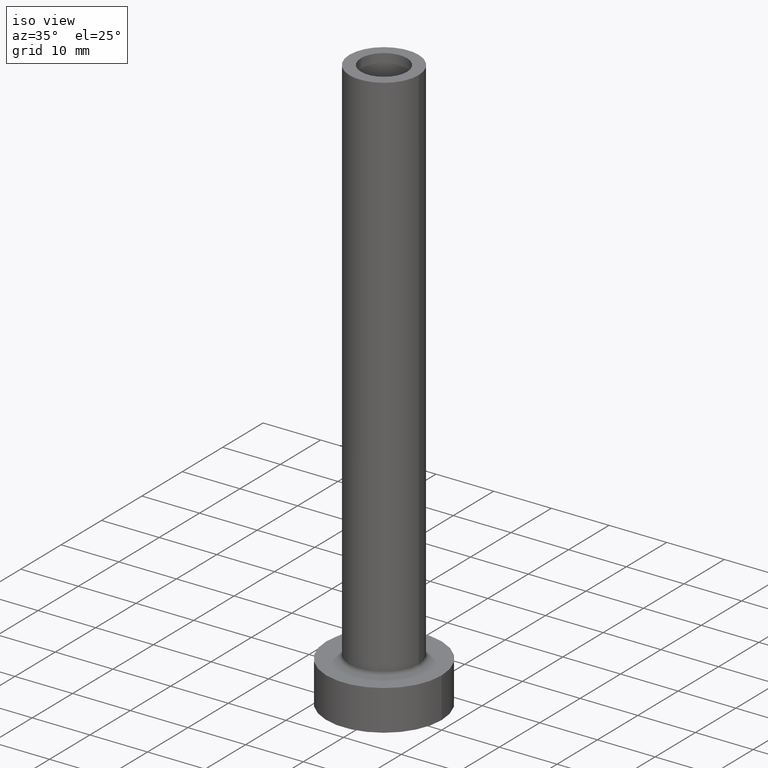
[diagram: clean part render]
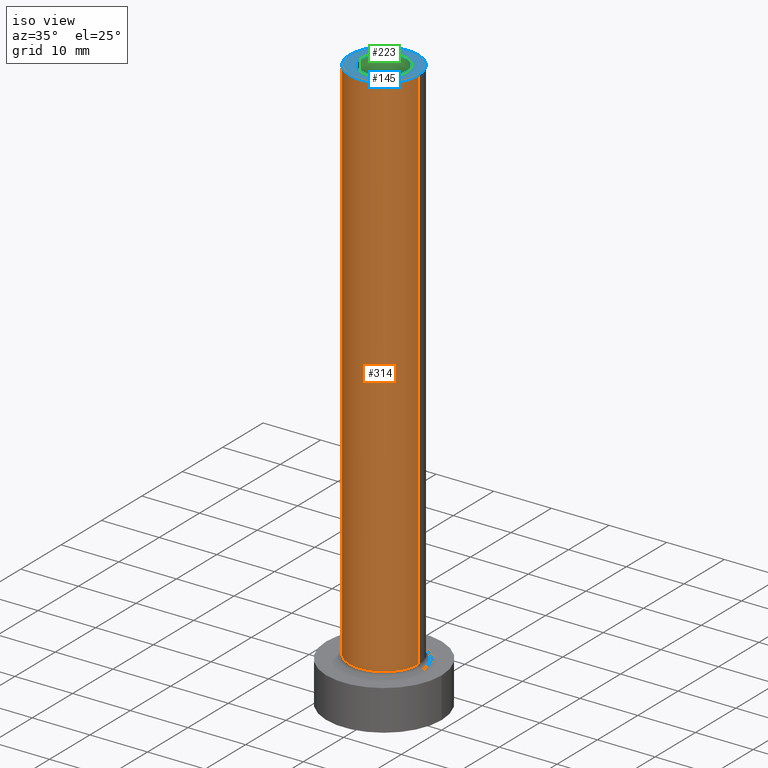
[diagram: same view with three faces highlighted in distinct colors, each labeled with its STEP entity id]
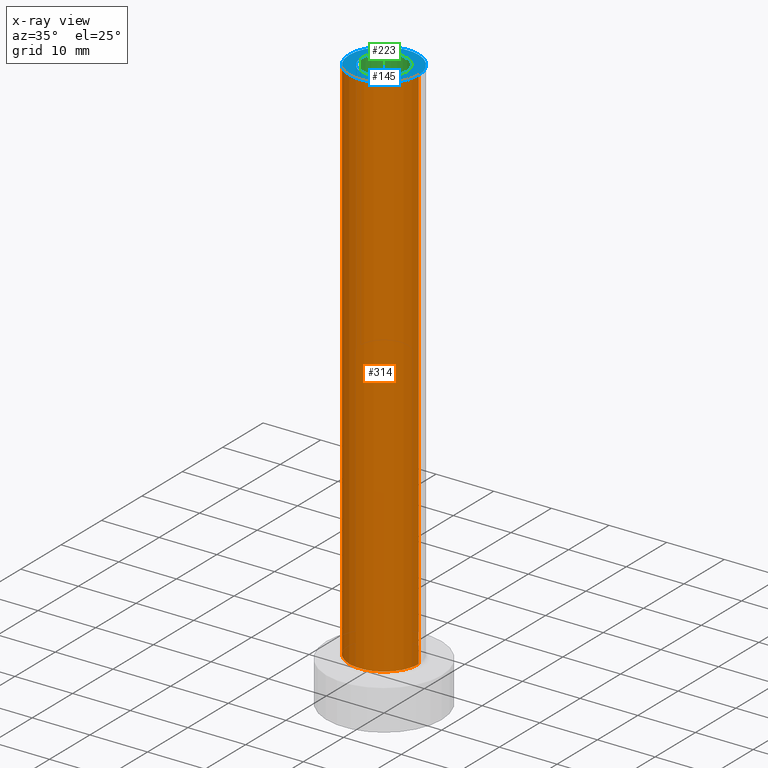
[diagram: x-ray of the same camera — body ghosted, the three highlighted faces saturated]
A machine part, iso view with three faces highlighted in distinct colors.
The next image is the same camera in x-ray (body ghosted, the three faces saturated) — at least one of them is partly hidden behind the body in this view.
Their STEP definitions:

[orange] entity #314 — the highlighted cylindrical surface (partial cylindrical patch) has radius 6 mm, axis along (-0, -0, -1).
#15 = EDGE_CURVE ( 'NONE', #298, #230, #331, .T. ) ;
#42 = EDGE_CURVE ( 'NONE', #311, #298, #171, .T. ) ;
#58 = VECTOR ( 'NONE', #371, 1000.000000000000000 ) ;
#60 = CARTESIAN_POINT ( 'NONE',  ( 0.000000000000000000, 0.000000000000000000, 100.0000000000000000 ) ) ;
#73 = DIRECTION ( 'NONE',  ( 1.000000000000000000, 0.000000000000000000, 0.000000000000000000 ) ) ;
#93 = CARTESIAN_POINT ( 'NONE',  ( 0.000000000000000000, 0.000000000000000000, 100.0000000000000000 ) ) ;
#104 = CIRCLE ( 'NONE', #410, 6.000000000000000888 ) ;
#135 = ORIENTED_EDGE ( 'NONE', *, *, #15, .T. ) ;
#171 = LINE ( 'NONE', #333, #58 ) ;
#173 = DIRECTION ( 'NONE',  ( 0.000000000000000000, 0.000000000000000000, 1.000000000000000000 ) ) ;
#178 = EDGE_LOOP ( 'NONE', ( #325, #290, #430, #135 ) ) ;
#194 = CARTESIAN_POINT ( 'NONE',  ( 6.000000000000000888, 7.347880794884119736E-16, 100.0000000000000000 ) ) ;
#213 = EDGE_CURVE ( 'NONE', #262, #230, #222, .T. ) ;
#222 = LINE ( 'NONE', #426, #335 ) ;
#230 = VERTEX_POINT ( 'NONE', #258 ) ;
#232 = DIRECTION ( 'NONE',  ( 0.000000000000000000, 0.000000000000000000, 1.000000000000000000 ) ) ;
#258 = CARTESIAN_POINT ( 'NONE',  ( 6.000000000000000888, 7.347880794884119736E-16, 7.699999999999998401 ) ) ;
#262 = VERTEX_POINT ( 'NONE', #194 ) ;
#263 = EDGE_CURVE ( 'NONE', #311, #262, #104, .T. ) ;
#271 = FACE_OUTER_BOUND ( 'NONE', #178, .T. ) ;
#290 = ORIENTED_EDGE ( 'NONE', *, *, #263, .F. ) ;
#298 = VERTEX_POINT ( 'NONE', #362 ) ;
#311 = VERTEX_POINT ( 'NONE', #443 ) ;
#312 = AXIS2_PLACEMENT_3D ( 'NONE', #93, #451, #415 ) ;
#314 = ADVANCED_FACE ( 'NONE', ( #271 ), #414, .T. ) ;
#325 = ORIENTED_EDGE ( 'NONE', *, *, #213, .F. ) ;
#331 = CIRCLE ( 'NONE', #383, 6.000000000000000888 ) ;
#333 = CARTESIAN_POINT ( 'NONE',  ( -6.000000000000000888, 0.000000000000000000, 100.0000000000000000 ) ) ;
#335 = VECTOR ( 'NONE', #435, 1000.000000000000000 ) ;
#362 = CARTESIAN_POINT ( 'NONE',  ( -6.000000000000000888, 0.000000000000000000, 7.699999999999998401 ) ) ;
#364 = DIRECTION ( 'NONE',  ( 1.000000000000000000, 0.000000000000000000, 0.000000000000000000 ) ) ;
#371 = DIRECTION ( 'NONE',  ( -0.000000000000000000, -0.000000000000000000, -1.000000000000000000 ) ) ;
#383 = AXIS2_PLACEMENT_3D ( 'NONE', #424, #173, #73 ) ;
#410 = AXIS2_PLACEMENT_3D ( 'NONE', #60, #232, #364 ) ;
#414 = CYLINDRICAL_SURFACE ( 'NONE', #312, 6.000000000000000888 ) ;
#415 = DIRECTION ( 'NONE',  ( -1.000000000000000000, 0.000000000000000000, 0.000000000000000000 ) ) ;
#424 = CARTESIAN_POINT ( 'NONE',  ( 0.000000000000000000, 0.000000000000000000, 7.699999999999998401 ) ) ;
#426 = CARTESIAN_POINT ( 'NONE',  ( 6.000000000000000888, 7.347880794884119736E-16, 100.0000000000000000 ) ) ;
#430 = ORIENTED_EDGE ( 'NONE', *, *, #42, .T. ) ;
#435 = DIRECTION ( 'NONE',  ( -0.000000000000000000, -0.000000000000000000, -1.000000000000000000 ) ) ;
#443 = CARTESIAN_POINT ( 'NONE',  ( -6.000000000000000888, 0.000000000000000000, 100.0000000000000000 ) ) ;
#451 = DIRECTION ( 'NONE',  ( -0.000000000000000000, -0.000000000000000000, -1.000000000000000000 ) ) ;

[blue] entity #145 — the highlighted planar face has unit normal (0, 0, 1).
#22 = CARTESIAN_POINT ( 'NONE',  ( 0.000000000000000000, 0.000000000000000000, 100.0000000000000000 ) ) ;
#28 = DIRECTION ( 'NONE',  ( 1.000000000000000000, 0.000000000000000000, 0.000000000000000000 ) ) ;
#35 = AXIS2_PLACEMENT_3D ( 'NONE', #244, #378, #65 ) ;
#54 = EDGE_CURVE ( 'NONE', #149, #304, #279, .T. ) ;
#60 = CARTESIAN_POINT ( 'NONE',  ( 0.000000000000000000, 0.000000000000000000, 100.0000000000000000 ) ) ;
#61 = CARTESIAN_POINT ( 'NONE',  ( 0.000000000000000000, 0.000000000000000000, 100.0000000000000000 ) ) ;
#64 = DIRECTION ( 'NONE',  ( 1.000000000000000000, 0.000000000000000000, 0.000000000000000000 ) ) ;
#65 = DIRECTION ( 'NONE',  ( 1.000000000000000000, 0.000000000000000000, -0.000000000000000000 ) ) ;
#102 = AXIS2_PLACEMENT_3D ( 'NONE', #197, #303, #64 ) ;
#104 = CIRCLE ( 'NONE', #410, 6.000000000000000888 ) ;
#116 = EDGE_CURVE ( 'NONE', #262, #311, #240, .T. ) ;
#126 = FACE_OUTER_BOUND ( 'NONE', #261, .T. ) ;
#145 = ADVANCED_FACE ( 'NONE', ( #340, #126 ), #270, .T. ) ;
#149 = VERTEX_POINT ( 'NONE', #207 ) ;
#150 = ORIENTED_EDGE ( 'NONE', *, *, #116, .T. ) ;
#181 = CIRCLE ( 'NONE', #102, 4.000000000000000000 ) ;
#194 = CARTESIAN_POINT ( 'NONE',  ( 6.000000000000000888, 7.347880794884119736E-16, 100.0000000000000000 ) ) ;
#197 = CARTESIAN_POINT ( 'NONE',  ( 0.000000000000000000, 0.000000000000000000, 100.0000000000000000 ) ) ;
#207 = CARTESIAN_POINT ( 'NONE',  ( 4.000000000000000000, 4.898587196589411843E-16, 100.0000000000000000 ) ) ;
#225 = ORIENTED_EDGE ( 'NONE', *, *, #54, .F. ) ;
#232 = DIRECTION ( 'NONE',  ( 0.000000000000000000, 0.000000000000000000, 1.000000000000000000 ) ) ;
#240 = CIRCLE ( 'NONE', #412, 6.000000000000000888 ) ;
#244 = CARTESIAN_POINT ( 'NONE',  ( 0.000000000000000000, 0.000000000000000000, 100.0000000000000000 ) ) ;
#261 = EDGE_LOOP ( 'NONE', ( #441, #150 ) ) ;
#262 = VERTEX_POINT ( 'NONE', #194 ) ;
#263 = EDGE_CURVE ( 'NONE', #311, #262, #104, .T. ) ;
#269 = DIRECTION ( 'NONE',  ( 0.000000000000000000, 0.000000000000000000, 1.000000000000000000 ) ) ;
#270 = PLANE ( 'NONE',  #35 ) ;
#279 = CIRCLE ( 'NONE', #440, 4.000000000000000000 ) ;
#303 = DIRECTION ( 'NONE',  ( 0.000000000000000000, 0.000000000000000000, 1.000000000000000000 ) ) ;
#304 = VERTEX_POINT ( 'NONE', #326 ) ;
#311 = VERTEX_POINT ( 'NONE', #443 ) ;
#317 = ORIENTED_EDGE ( 'NONE', *, *, #349, .F. ) ;
#326 = CARTESIAN_POINT ( 'NONE',  ( -4.000000000000000000, 0.000000000000000000, 100.0000000000000000 ) ) ;
#332 = EDGE_LOOP ( 'NONE', ( #317, #225 ) ) ;
#340 = FACE_BOUND ( 'NONE', #332, .T. ) ;
#342 = DIRECTION ( 'NONE',  ( 0.000000000000000000, 0.000000000000000000, 1.000000000000000000 ) ) ;
#349 = EDGE_CURVE ( 'NONE', #304, #149, #181, .T. ) ;
#364 = DIRECTION ( 'NONE',  ( 1.000000000000000000, 0.000000000000000000, 0.000000000000000000 ) ) ;
#378 = DIRECTION ( 'NONE',  ( 0.000000000000000000, 0.000000000000000000, 1.000000000000000000 ) ) ;
#410 = AXIS2_PLACEMENT_3D ( 'NONE', #60, #232, #364 ) ;
#412 = AXIS2_PLACEMENT_3D ( 'NONE', #22, #269, #456 ) ;
#440 = AXIS2_PLACEMENT_3D ( 'NONE', #61, #342, #28 ) ;
#441 = ORIENTED_EDGE ( 'NONE', *, *, #263, .T. ) ;
#443 = CARTESIAN_POINT ( 'NONE',  ( -6.000000000000000888, 0.000000000000000000, 100.0000000000000000 ) ) ;
#456 = DIRECTION ( 'NONE',  ( 1.000000000000000000, 0.000000000000000000, 0.000000000000000000 ) ) ;

[green] entity #223 — the highlighted cylindrical surface (edge-blend (fillet) strip) has radius 4 mm, axis along (0, 0, -1).
#28 = DIRECTION ( 'NONE',  ( 1.000000000000000000, 0.000000000000000000, 0.000000000000000000 ) ) ;
#34 = LINE ( 'NONE', #407, #246 ) ;
#54 = EDGE_CURVE ( 'NONE', #149, #304, #279, .T. ) ;
#61 = CARTESIAN_POINT ( 'NONE',  ( 0.000000000000000000, 0.000000000000000000, 100.0000000000000000 ) ) ;
#72 = AXIS2_PLACEMENT_3D ( 'NONE', #77, #141, #432 ) ;
#77 = CARTESIAN_POINT ( 'NONE',  ( 0.000000000000000000, 0.000000000000000000, 100.0000000000000000 ) ) ;
#84 = EDGE_CURVE ( 'NONE', #304, #288, #34, .T. ) ;
#88 = VECTOR ( 'NONE', #398, 1000.000000000000000 ) ;
#141 = DIRECTION ( 'NONE',  ( 0.000000000000000000, 0.000000000000000000, -1.000000000000000000 ) ) ;
#149 = VERTEX_POINT ( 'NONE', #207 ) ;
#153 = CARTESIAN_POINT ( 'NONE',  ( 0.000000000000000000, 0.000000000000000000, 55.00000000000000711 ) ) ;
#190 = DIRECTION ( 'NONE',  ( 0.000000000000000000, 0.000000000000000000, 1.000000000000000000 ) ) ;
#202 = ORIENTED_EDGE ( 'NONE', *, *, #84, .T. ) ;
#207 = CARTESIAN_POINT ( 'NONE',  ( 4.000000000000000000, 4.898587196589411843E-16, 100.0000000000000000 ) ) ;
#218 = EDGE_LOOP ( 'NONE', ( #372, #231, #202, #264 ) ) ;
#223 = ADVANCED_FACE ( 'NONE', ( #287 ), #356, .F. ) ;
#228 = CARTESIAN_POINT ( 'NONE',  ( -4.000000000000000000, 0.000000000000000000, 55.00000000000000711 ) ) ;
#231 = ORIENTED_EDGE ( 'NONE', *, *, #54, .T. ) ;
#234 = CARTESIAN_POINT ( 'NONE',  ( 4.000000000000000000, 4.898587196589411843E-16, 100.0000000000000000 ) ) ;
#236 = AXIS2_PLACEMENT_3D ( 'NONE', #153, #190, #286 ) ;
#246 = VECTOR ( 'NONE', #308, 1000.000000000000000 ) ;
#264 = ORIENTED_EDGE ( 'NONE', *, *, #278, .F. ) ;
#278 = EDGE_CURVE ( 'NONE', #363, #288, #284, .T. ) ;
#279 = CIRCLE ( 'NONE', #440, 4.000000000000000000 ) ;
#284 = CIRCLE ( 'NONE', #236, 4.000000000000000000 ) ;
#286 = DIRECTION ( 'NONE',  ( 1.000000000000000000, 0.000000000000000000, 0.000000000000000000 ) ) ;
#287 = FACE_OUTER_BOUND ( 'NONE', #218, .T. ) ;
#288 = VERTEX_POINT ( 'NONE', #228 ) ;
#304 = VERTEX_POINT ( 'NONE', #326 ) ;
#308 = DIRECTION ( 'NONE',  ( 0.000000000000000000, 0.000000000000000000, -1.000000000000000000 ) ) ;
#326 = CARTESIAN_POINT ( 'NONE',  ( -4.000000000000000000, 0.000000000000000000, 100.0000000000000000 ) ) ;
#339 = CARTESIAN_POINT ( 'NONE',  ( 4.000000000000000000, 4.898587196589411843E-16, 55.00000000000000711 ) ) ;
#342 = DIRECTION ( 'NONE',  ( 0.000000000000000000, 0.000000000000000000, 1.000000000000000000 ) ) ;
#356 = CYLINDRICAL_SURFACE ( 'NONE', #72, 4.000000000000000000 ) ;
#363 = VERTEX_POINT ( 'NONE', #339 ) ;
#372 = ORIENTED_EDGE ( 'NONE', *, *, #416, .F. ) ;
#398 = DIRECTION ( 'NONE',  ( 0.000000000000000000, 0.000000000000000000, -1.000000000000000000 ) ) ;
#407 = CARTESIAN_POINT ( 'NONE',  ( -4.000000000000000000, 0.000000000000000000, 100.0000000000000000 ) ) ;
#416 = EDGE_CURVE ( 'NONE', #149, #363, #433, .T. ) ;
#432 = DIRECTION ( 'NONE',  ( -1.000000000000000000, 0.000000000000000000, 0.000000000000000000 ) ) ;
#433 = LINE ( 'NONE', #234, #88 ) ;
#440 = AXIS2_PLACEMENT_3D ( 'NONE', #61, #342, #28 ) ;